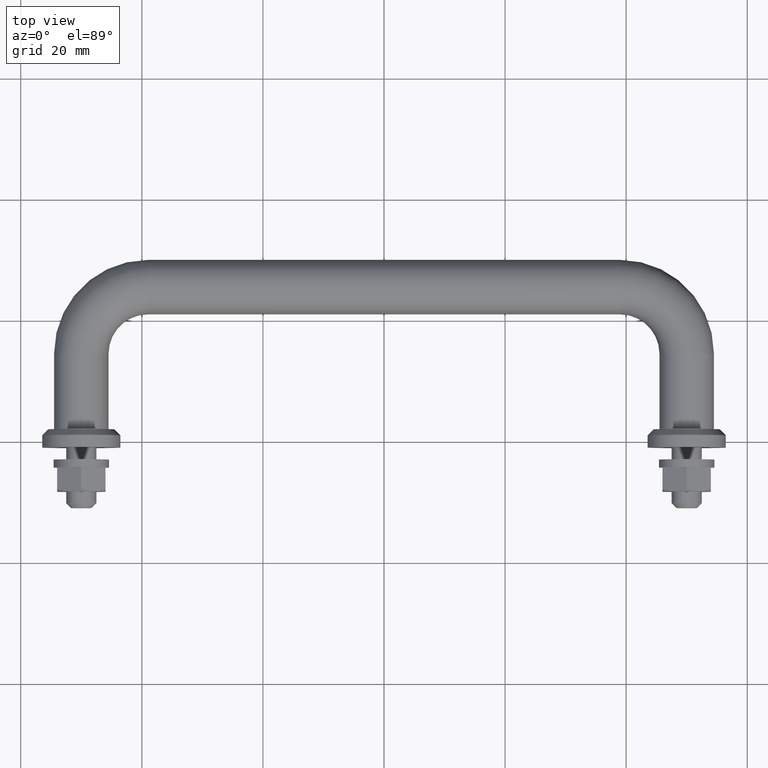
[diagram: clean part render]
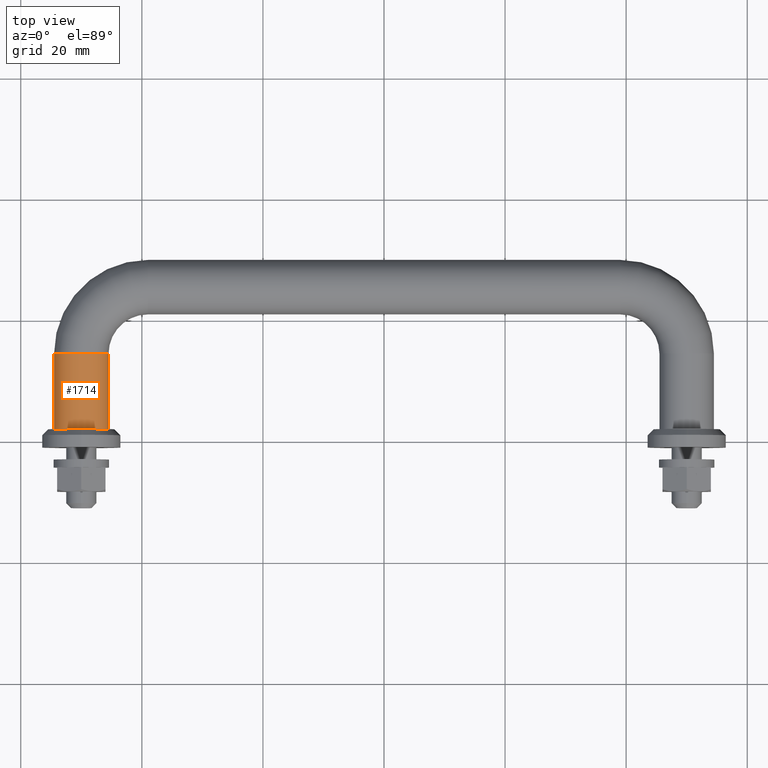
[diagram: same view with one face highlighted and labeled with its STEP entity id]
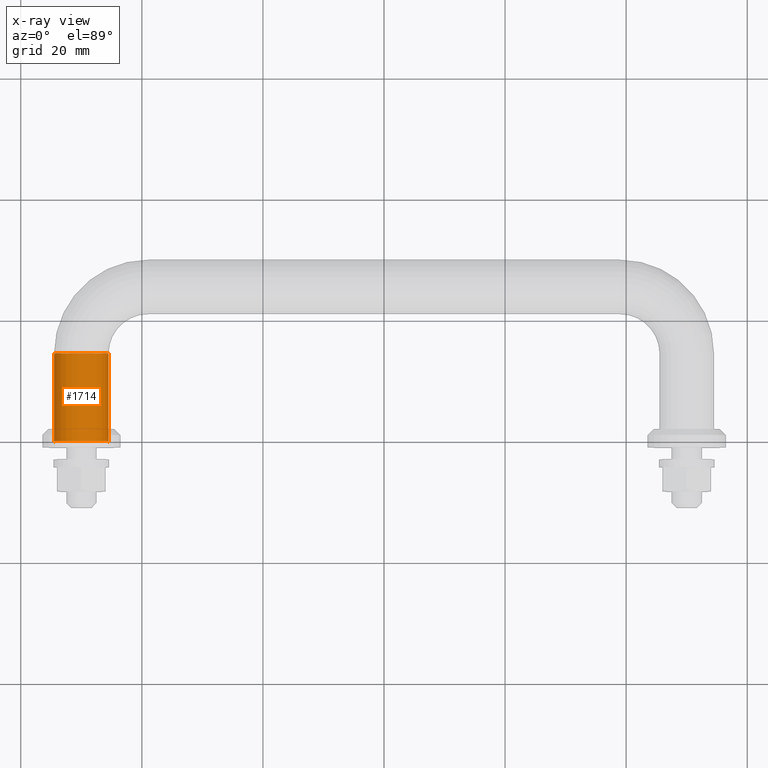
[diagram: x-ray of the same camera — body ghosted, the highlighted face saturated]
A machine part, top view. The second image highlights one B-rep face of the part: STEP entity #1714.
The next image is the same camera in x-ray: the body ghosted, the highlighted face saturated — about 0% of this face is hidden behind the body in this view.
In plain terms, the highlighted cylindrical surface (edge-blend (fillet) strip) has radius 4.5 mm, axis along (0, -1, 0).
Its self-contained STEP definition (entity closure, byte-faithful):
#14 = LINE ( 'NONE', #1562, #1063 ) ;
#57 = EDGE_CURVE ( 'NONE', #1091, #712, #1139, .T. ) ;
#66 = VERTEX_POINT ( 'NONE', #802 ) ;
#75 = AXIS2_PLACEMENT_3D ( 'NONE', #1142, #852, #1409 ) ;
#179 = EDGE_LOOP ( 'NONE', ( #685, #364, #1782, #1485 ) ) ;
#296 = DIRECTION ( 'NONE',  ( 1.435633221498045900E-015, -1.000000000000000000, -0.0000000000000000000 ) ) ;
#331 = DIRECTION ( 'NONE',  ( 0.0000000000000000000, 0.0000000000000000000, 1.000000000000000000 ) ) ;
#364 = ORIENTED_EDGE ( 'NONE', *, *, #57, .T. ) ;
#473 = CARTESIAN_POINT ( 'NONE',  ( -50.00000000000001400, 14.50000000000001400, 0.0000000000000000000 ) ) ;
#497 = CARTESIAN_POINT ( 'NONE',  ( -54.50000000000001400, 14.50000000000001400, 5.510910596163096500E-016 ) ) ;
#684 = DIRECTION ( 'NONE',  ( 0.0000000000000000000, 1.000000000000000000, 0.0000000000000000000 ) ) ;
#685 = ORIENTED_EDGE ( 'NONE', *, *, #1193, .F. ) ;
#691 = EDGE_CURVE ( 'NONE', #712, #987, #1516, .T. ) ;
#696 = AXIS2_PLACEMENT_3D ( 'NONE', #473, #1292, #331 ) ;
#712 = VERTEX_POINT ( 'NONE', #1785 ) ;
#759 = CYLINDRICAL_SURFACE ( 'NONE', #75, 4.499999999999997300 ) ;
#762 = VECTOR ( 'NONE', #824, 1000.000000000000000 ) ;
#772 = CARTESIAN_POINT ( 'NONE',  ( -45.50000000000000000, 0.0000000000000000000, 0.0000000000000000000 ) ) ;
#802 = CARTESIAN_POINT ( 'NONE',  ( -45.50000000000002100, 14.50000000000001400, 0.0000000000000000000 ) ) ;
#821 = CARTESIAN_POINT ( 'NONE',  ( -49.99999999999999300, 0.0000000000000000000, 0.0000000000000000000 ) ) ;
#824 = DIRECTION ( 'NONE',  ( 1.435633221498045900E-015, -1.000000000000000000, -0.0000000000000000000 ) ) ;
#852 = DIRECTION ( 'NONE',  ( 1.435633221498045900E-015, -1.000000000000000000, -0.0000000000000000000 ) ) ;
#905 = CIRCLE ( 'NONE', #696, 4.499999999999998200 ) ;
#987 = VERTEX_POINT ( 'NONE', #772 ) ;
#1063 = VECTOR ( 'NONE', #296, 1000.000000000000000 ) ;
#1091 = VERTEX_POINT ( 'NONE', #497 ) ;
#1139 = LINE ( 'NONE', #1767, #762 ) ;
#1142 = CARTESIAN_POINT ( 'NONE',  ( -50.00000000000001400, 14.50000000000001400, 0.0000000000000000000 ) ) ;
#1176 = FACE_OUTER_BOUND ( 'NONE', #179, .T. ) ;
#1193 = EDGE_CURVE ( 'NONE', #1091, #66, #905, .T. ) ;
#1203 = AXIS2_PLACEMENT_3D ( 'NONE', #821, #684, #1513 ) ;
#1292 = DIRECTION ( 'NONE',  ( 0.0000000000000000000, 1.000000000000000000, 0.0000000000000000000 ) ) ;
#1409 = DIRECTION ( 'NONE',  ( 1.000000000000000000, 1.541976423090496000E-015, 0.0000000000000000000 ) ) ;
#1484 = EDGE_CURVE ( 'NONE', #66, #987, #14, .T. ) ;
#1485 = ORIENTED_EDGE ( 'NONE', *, *, #1484, .F. ) ;
#1513 = DIRECTION ( 'NONE',  ( 0.0000000000000000000, 0.0000000000000000000, 1.000000000000000000 ) ) ;
#1516 = CIRCLE ( 'NONE', #1203, 4.499999999999998200 ) ;
#1562 = CARTESIAN_POINT ( 'NONE',  ( -45.50000000000002100, 14.50000000000002100, 0.0000000000000000000 ) ) ;
#1714 = ADVANCED_FACE ( 'NONE', ( #1176 ), #759, .T. ) ;
#1767 = CARTESIAN_POINT ( 'NONE',  ( -54.50000000000001400, 14.50000000000000700, 5.510910596163086600E-016 ) ) ;
#1782 = ORIENTED_EDGE ( 'NONE', *, *, #691, .T. ) ;
#1785 = CARTESIAN_POINT ( 'NONE',  ( -54.49999999999999300, 0.0000000000000000000, 5.510910596163087600E-016 ) ) ;